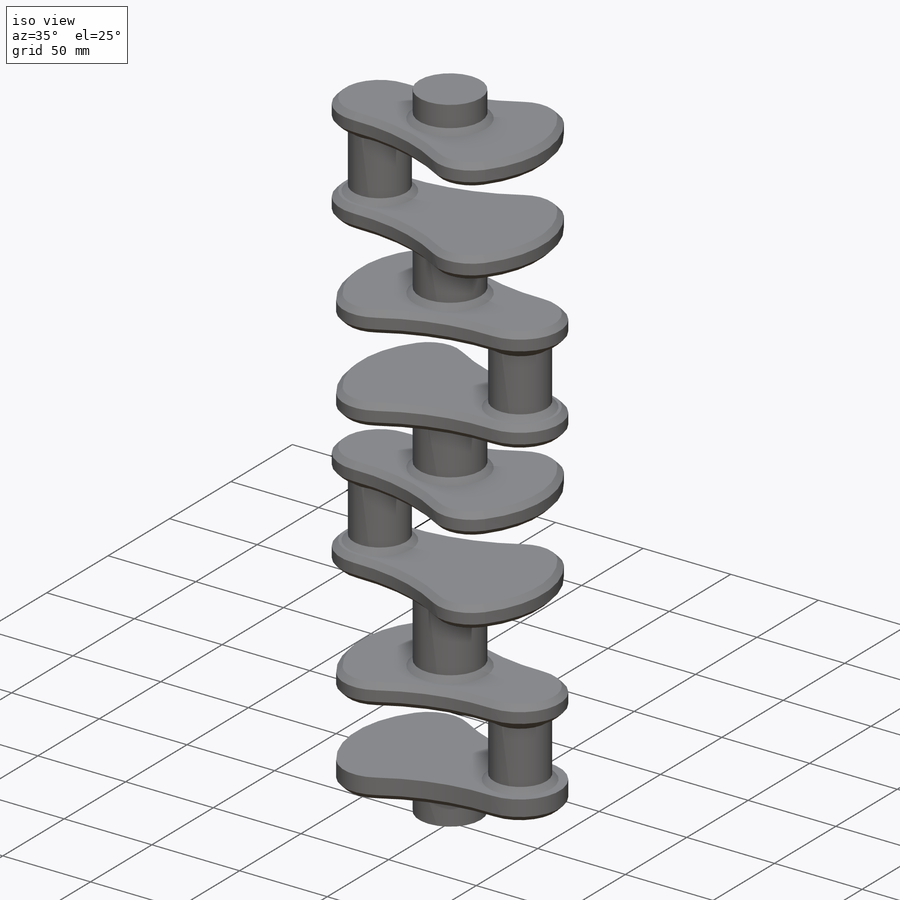
[diagram: iso view]
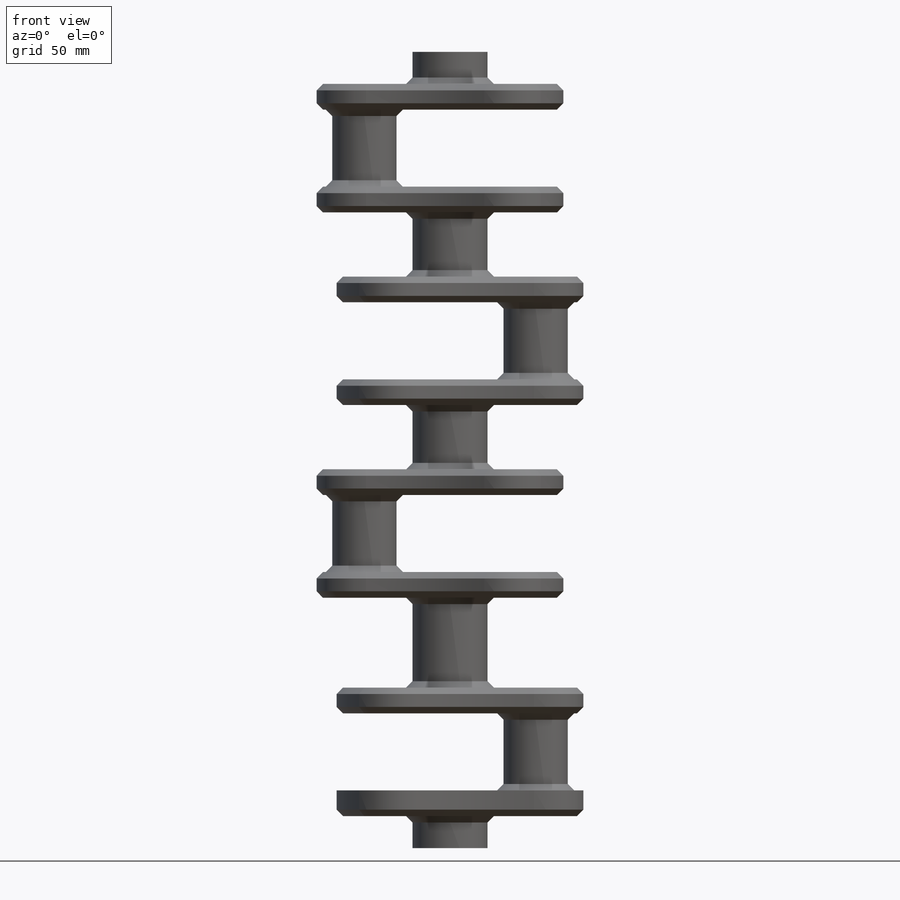
[diagram: front view]
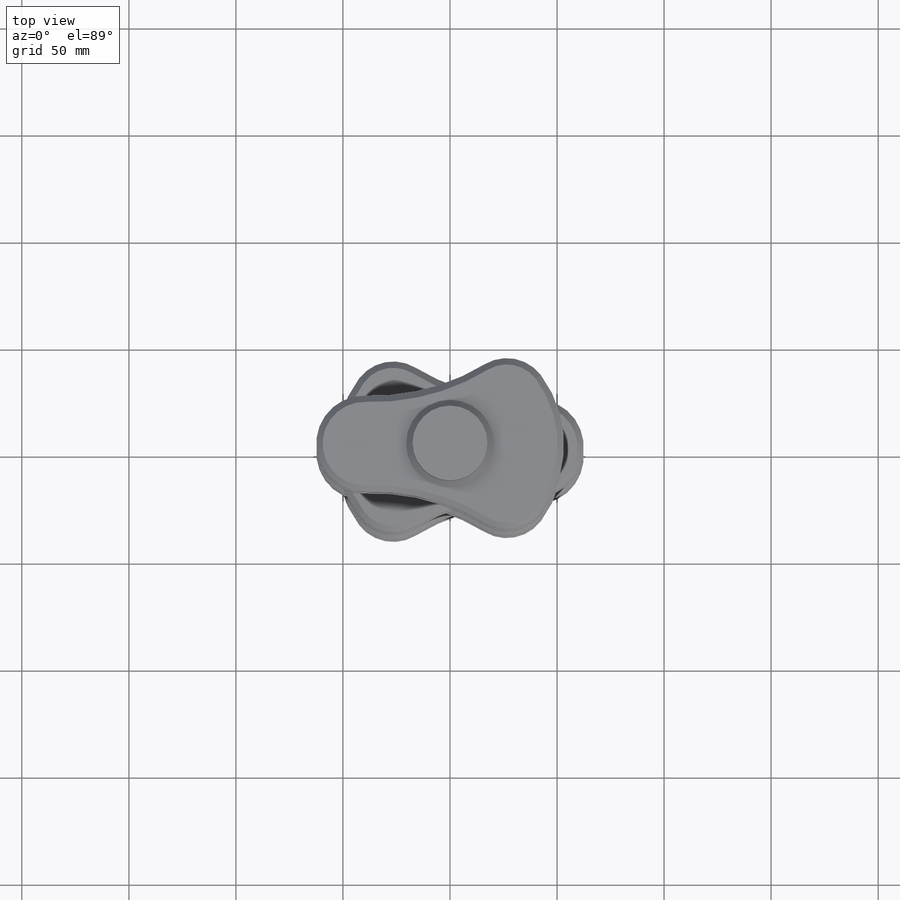
[diagram: top view]
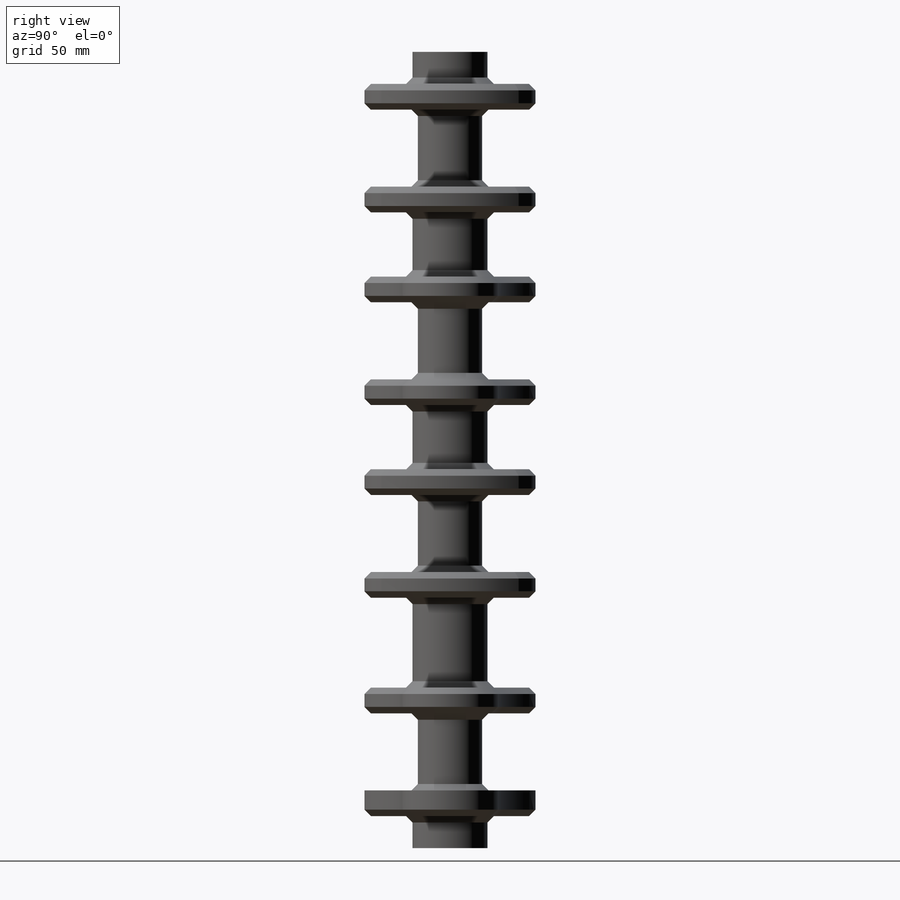
[diagram: right view]
SOLIDWORKS PART (.sldprt)
format: sldprt  version: not decoded by parser v0  size: 569,344 bytes
history: native  units: mm
features: sketch x18, extrude x17, plane x10, material x1, chamfer x1 (+8 scaffold rows collapsed)
feature tree (55):
  scaffold x8  (default folders/planes/origin — collapsed)
  material  "Material <sin especificar>"
  plane  "Alzado"
  plane  "Planta"
  plane  "Vista lateral"
  sketch  "Croquis2"  dims[D2=40.0mm D3=45.0mm D5=200.0mm D1=26.5mm D4=40.0mm D6=~122.434896mm]
  extrude  "Saliente-Extruir1"  Depth=12mm
  sketch  "Croquis3"  dims[D1=35.0mm]
  extrude  "Saliente-Extruir2"  Depth=15mm
  plane  "Plano1"  Offset=36mm
  sketch  "Croquis4"
  extrude  "Saliente-Extruir3"  Depth=12mm
  sketch  "Croquis6"  dims[D1=30.0mm]
  sketch  "Croquis7"  dims[D1=~25.848009mm]
  extrude  "Saliente-Extruir4"  [1 undecoded]
  plane  "Plano2"  Offset=42mm
  sketch  "Croquis8"  dims[c1.D1=22.5mm c1.D2=100.0mm c1.D3=20.0mm c1.D4=~53.200151mm c1.D5=~16.082211mm c1.D6=26.5mm c1.D7=~42.463783mm c1.D8=~36.006736mm c1.D9=~39.266543mm c1.D10=40.0mm c2.D5=~16.082211mm c2.D6=26.5mm]
  extrude  "Saliente-Extruir6"  Depth=12mm
  sketch  "Croquis9"
  extrude  "Saliente-Extruir7"  [1 undecoded]
  plane  "Plano3"  Offset=48mm
  sketch  "Croquis10"
  extrude  "Saliente-Extruir8"  Depth=12mm
  sketch  "Croquis11"  dims[D1=30.0mm]
  extrude  "Saliente-Extruir10"  [1 undecoded]
  plane  "Plano4"  Offset=42mm
  sketch  "Croquis12"  dims[D1=0.0mm]
  extrude  "Saliente-Extruir11"  Depth=12mm
  sketch  "Croquis13"
  extrude  "Saliente-Extruir12"  [1 undecoded]
  plane  "Plano5"  Offset=48mm
  sketch  "Croquis14"  dims[D1=0.0mm]
  extrude  "Saliente-Extruir13"  Depth=12mm
  sketch  "Croquis15"  dims[D1=30.0mm]
  extrude  "Saliente-Extruir14"  [1 undecoded]
  plane  "Plano6"  Offset=42mm
  sketch  "Croquis17"  dims[D1=0.0mm]
  extrude  "Saliente-Extruir16"  Depth=12mm
  sketch  "Croquis18"
  extrude  "Saliente-Extruir17"  [1 undecoded]
  plane  "Plano7"  Offset=48mm
  sketch  "Croquis19"  dims[D1=0.0mm]
  extrude  "Saliente-Extruir18"  Depth=12mm
  sketch  "Croquis20"
  extrude  "Saliente-Extruir19"  [1 undecoded]
  sketch  "Croquis21"
  extrude  "Saliente-Extruir20"  Depth=15mm
  chamfer  "Chaflán2"  Distance=3mm Angle=45deg
decode coverage: 22 of 36 modeling features carry decoded parameters
note: ~ marks probable driven/reference dimensions
note: 7 parameter values undecoded
summary: no parameter record found for 7 features
note: suppression state not decoded; provenance and decode notes live in map.json
